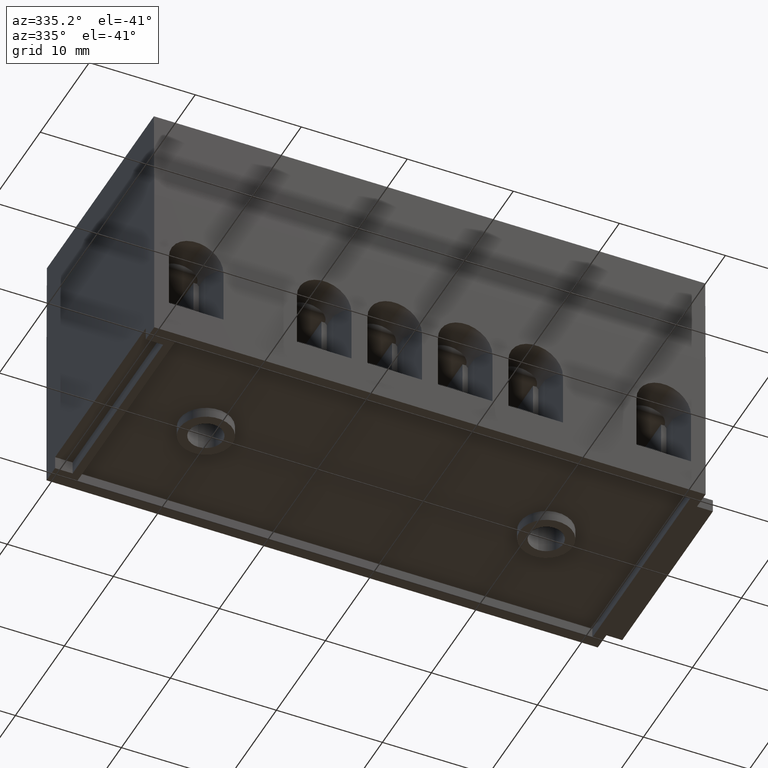
[diagram: clean part render]
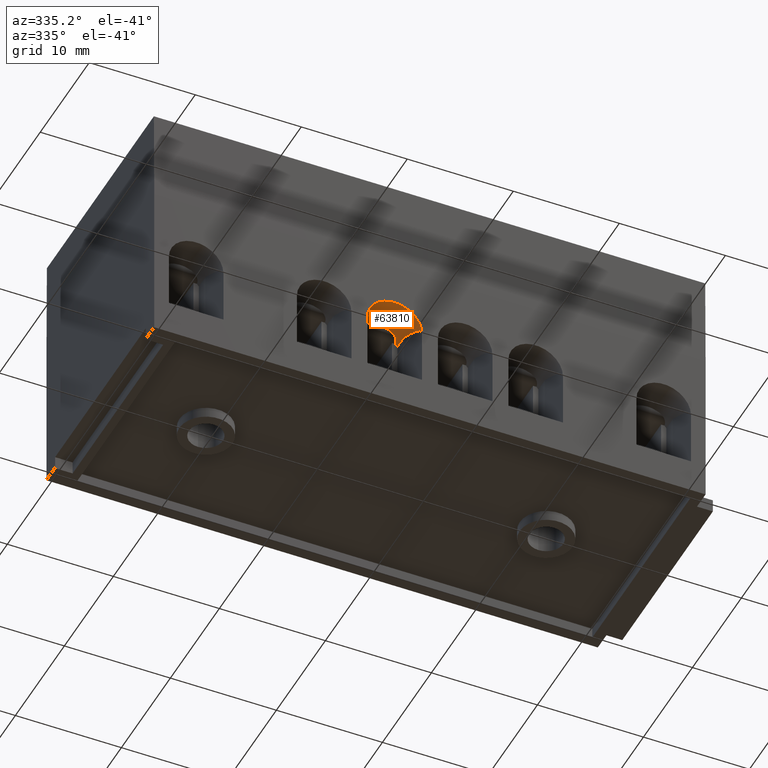
[diagram: same view with one face highlighted and labeled with its STEP entity id]
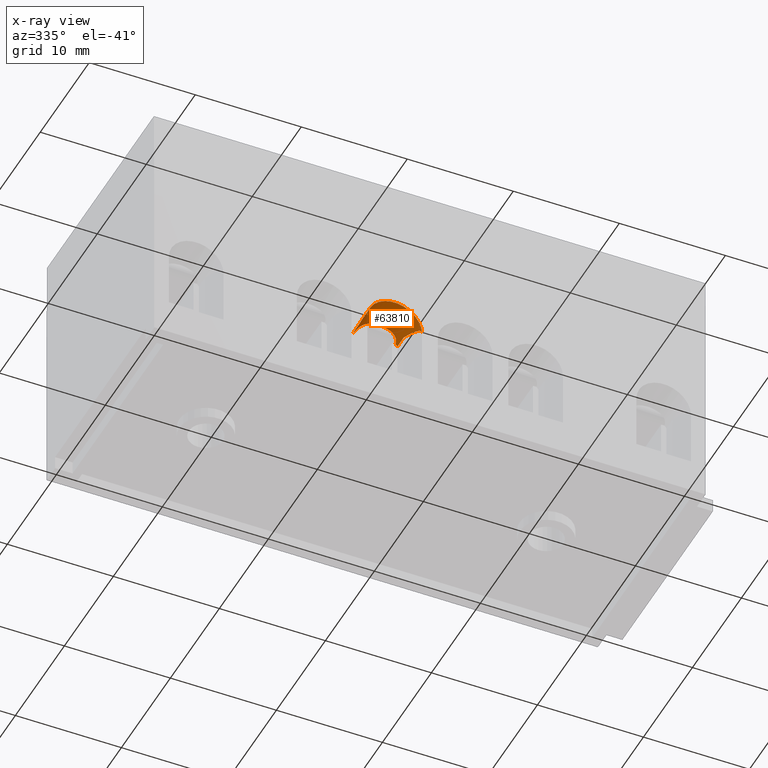
[diagram: x-ray of the same camera — body ghosted, the highlighted face saturated]
A machine part, auxiliary view. The second image highlights one B-rep face of the part: STEP entity #63810.
The next image is the same camera in x-ray: the body ghosted, the highlighted face saturated — about 0% of this face is hidden behind the body in this view.
In plain terms, the highlighted cylindrical surface (edge-blend (fillet) strip) has radius 2.575 mm, axis along (0, 1, 0).
Its self-contained STEP definition (entity closure, byte-faithful):
#17730=CARTESIAN_POINT('',(-109.132337741337,-187.476755845654,
-2.5371653489259E-7));
#17740=VERTEX_POINT('',#17730);
#17770=CARTESIAN_POINT('',(-106.557337741337,-187.476755845654,
-2.53716533116233E-7));
#17780=DIRECTION('',(0.,0.,1.));
#17790=DIRECTION('',(-1.,0.,0.));
#17800=AXIS2_PLACEMENT_3D('',#17770,#17780,#17790);
#17810=CIRCLE('',#17800,2.57499999999999);
#17820=CARTESIAN_POINT('',(-103.982337741337,-187.476755845654,
-2.5371653489259E-7));
#17830=VERTEX_POINT('',#17820);
#17840=EDGE_CURVE('',#17830,#17740,#17810,.T.);
#61100=CARTESIAN_POINT('',(-106.557337741337,-187.476755845654,
4.52970994047064E-14));
#61110=DIRECTION('',(0.,0.,1.));
#61120=DIRECTION('',(-1.,0.,0.));
#61130=AXIS2_PLACEMENT_3D('',#61100,#61110,#61120);
#61140=CYLINDRICAL_SURFACE('',#61130,2.57499999999999);
#61150=CARTESIAN_POINT('',(-106.557337741337,-184.954945071401,
4.05000000000006));
#61160=DIRECTION('',(-1.,0.,-3.44892722976232E-15));
#61170=DIRECTION('',(-3.44892722976232E-15,0.,1.));
#61180=AXIS2_PLACEMENT_3D('',#61150,#61160,#61170);
#61190=CYLINDRICAL_SURFACE('',#61180,0.800000000000001);
#61200=CARTESIAN_POINT('',(-106.036669498728,-184.954945071401,
3.25000000000006));
#61210=CARTESIAN_POINT('',(-106.058018690955,-184.950537188576,
3.25000000000006));
#61220=CARTESIAN_POINT('',(-106.079409429883,-184.946403451234,
3.25003629271377));
#61230=CARTESIAN_POINT('',(-106.100829564351,-184.942544866997,
3.25009610894143));
#61240=CARTESIAN_POINT('',(-106.122245177745,-184.938687097177,
3.25015591254389));
#61250=CARTESIAN_POINT('',(-106.14372889894,-184.935097342086,
3.25023935224579));
#61260=CARTESIAN_POINT('',(-106.165274349902,-184.93177818424,
3.2503355107677));
#61270=CARTESIAN_POINT('',(-106.208364713264,-184.925139951514,
3.25052782540787));
#61280=CARTESIAN_POINT('',(-106.25169757476,-184.919585397265,
3.25076939829644));
#61290=CARTESIAN_POINT('',(-106.295192418903,-184.915134322102,
3.25099117386594));
#61300=CARTESIAN_POINT('',(-106.338687174338,-184.910683256016,
3.25121294898313));
#61310=CARTESIAN_POINT('',(-106.382343263984,-184.907335774938,
3.25141477783128));
#61320=CARTESIAN_POINT('',(-106.426076365165,-184.905103565285,
3.25155411938691));
#61330=CARTESIAN_POINT('',(-106.469809430067,-184.902871357484,
3.25169346082695));
#61340=CARTESIAN_POINT('',(-106.513618759901,-184.901754476813,
3.25177023317267));
#61350=CARTESIAN_POINT('',(-106.557418290329,-184.901755846914,
3.25177014187745));
#61360=CARTESIAN_POINT('',(-106.601217838844,-184.901757217014,
3.2517700505822));
#61370=CARTESIAN_POINT('',(-106.645006799705,-184.902876831415,
3.25169310474296));
#61380=CARTESIAN_POINT('',(-106.688699619602,-184.905108697047,
3.25155379906274));
#61390=CARTESIAN_POINT('',(-106.732392519042,-184.907340566742,
3.25141449312892));
#61400=CARTESIAN_POINT('',(-106.775988513547,-184.910684615035,
3.25121292581883));
#61410=CARTESIAN_POINT('',(-106.819405007173,-184.915126335327,
3.25099157184834));
#61420=CARTESIAN_POINT('',(-106.862834375558,-184.91956937277,
3.25077015223739));
#61430=CARTESIAN_POINT('',(-106.906028737297,-184.92510231107,
3.2505293441787));
#61440=CARTESIAN_POINT('',(-106.949066956924,-184.931726725652,
3.2503370032191));
#61450=CARTESIAN_POINT('',(-106.992135771808,-184.938355849436,
3.25014452552706));
#61460=CARTESIAN_POINT('',(-107.035149795692,-184.946096724629,
3.24999999999998));
#61470=CARTESIAN_POINT('',(-107.078005983946,-184.954945071401,
3.24999999999998));
#61480=B_SPLINE_CURVE_WITH_KNOTS('',3,(#61200,#61210,#61220,#61230,
#61240,#61250,#61260,#61270,#61280,#61290,#61300,#61310,#61320,#61330,
#61340,#61350,#61360,#61370,#61380,#61390,#61400,#61410,#61420,#61430,
#61440,#61450,#61460,#61470),.UNSPECIFIED.,.F.,.F.,(4,3,3,3,3,3,3,3,3,4)
,(0.,0.065349217398835,0.130689398047645,0.261685022357807,
0.392968221668109,0.52436729316619,0.655705900215693,0.786810000849604,
0.917545972419548,1.04857348763323),.UNSPECIFIED.);
#61490=SURFACE_CURVE('',#61480,(#61140,#61190),.CURVE_3D.);
#61500=CARTESIAN_POINT('',(-106.036669498728,-184.954945071401,
3.25000000000006));
#61510=VERTEX_POINT('',#61500);
#61520=CARTESIAN_POINT('',(-107.078005983946,-184.954945071401,
3.25000000000006));
#61530=VERTEX_POINT('',#61520);
#61540=EDGE_CURVE('',#61510,#61530,#61490,.T.);
#61550=ORIENTED_EDGE('',*,*,#61540,.T.);
#61560=CARTESIAN_POINT('',(-104.644067167693,-185.753381042534,
4.00000000000008));
#61570=CARTESIAN_POINT('',(-104.644602369958,-185.752786867232,
3.99051178131061));
#61580=CARTESIAN_POINT('',(-104.645286983965,-185.752027327444,
3.98108327044747));
#61590=CARTESIAN_POINT('',(-104.646124089443,-185.751100208855,
3.97166101158814));
#61600=CARTESIAN_POINT('',(-104.64696125764,-185.750173020805,
3.9622380467944));
#61610=CARTESIAN_POINT('',(-104.647951149807,-185.749077999277,
3.95282715965155));
#61620=CARTESIAN_POINT('',(-104.649093922556,-185.747816711941,
3.94344221461137));
#61630=CARTESIAN_POINT('',(-104.651272821792,-185.745411843592,
3.9255481498451));
#61640=CARTESIAN_POINT('',(-104.654008159184,-185.742401449734,
3.90774945677552));
#61650=CARTESIAN_POINT('',(-104.657291742541,-185.738811599581,
3.89014611046642));
#61660=CARTESIAN_POINT('',(-104.6605753034,-185.735221774023,
3.87254288476308));
#61670=CARTESIAN_POINT('',(-104.664406693913,-185.731053082019,
3.85513804796016));
#61680=CARTESIAN_POINT('',(-104.668764072147,-185.726351750582,
3.83802892811873));
#61690=CARTESIAN_POINT('',(-104.673121478654,-185.721650388641,
3.82091969726703));
#61700=CARTESIAN_POINT('',(-104.67800418149,-185.716417312921,
3.80410901677593));
#61710=CARTESIAN_POINT('',(-104.683377383895,-185.710715761529,
3.78768213186418));
#61720=CARTESIAN_POINT('',(-104.688754036329,-185.705010549281,
3.77124469956726));
#61730=CARTESIAN_POINT('',(-104.694603644897,-185.698855383188,
3.75523691703939));
#61740=CARTESIAN_POINT('',(-104.700931202845,-185.692272793382,
3.73960053093251));
#61750=CARTESIAN_POINT('',(-104.707264294659,-185.685684446669,
3.72395046977479));
#61760=CARTESIAN_POINT('',(-104.714094099796,-185.678649498501,
3.70863492809586));
#61770=CARTESIAN_POINT('',(-104.721399753758,-185.671220826395,
3.69370090821313));
#61780=CARTESIAN_POINT('',(-104.728705333672,-185.663792229585,
3.67876703969741));
#61790=CARTESIAN_POINT('',(-104.736486282078,-185.655970554998,
3.6642161049245));
#61800=CARTESIAN_POINT('',(-104.744711630787,-185.647818563139,
3.65009210503508));
#61810=CARTESIAN_POINT('',(-104.752936960033,-185.639666590568,
3.63596813856539));
#61820=CARTESIAN_POINT('',(-104.76160604639,-185.631185096117,
3.62227237750744));
#61830=CARTESIAN_POINT('',(-104.770678193741,-185.622443935263,
3.60904051574344));
#61840=CARTESIAN_POINT('',(-104.779750380812,-185.613702736139,
3.59580859604892));
#61850=CARTESIAN_POINT('',(-104.789224907632,-185.60470270232,
3.58304160236946));
#61860=CARTESIAN_POINT('',(-104.799052858648,-185.595517085869,
3.57076363422199));
#61870=CARTESIAN_POINT('',(-104.810172501137,-185.585124200231,
3.55687196788663));
#61880=CARTESIAN_POINT('',(-104.821730171841,-185.574507096356,
3.54362212386986));
#61890=CARTESIAN_POINT('',(-104.833684948232,-185.563735707542,
3.53098751330392));
#61900=CARTESIAN_POINT('',(-104.845653164675,-185.552952209088,
3.5183386983872));
#61910=CARTESIAN_POINT('',(-104.858077340743,-185.541961785237,
3.50624580803968));
#61920=CARTESIAN_POINT('',(-104.870923463441,-185.530828847182,
3.49470019194261));
#61930=CARTESIAN_POINT('',(-104.883769530082,-185.519695957709,
3.48315462622804));
#61940=CARTESIAN_POINT('',(-104.897037235532,-185.508420915314,
3.47215675721724));
#61950=CARTESIAN_POINT('',(-104.91068590058,-185.497068315933,
3.4616953274554));
#61960=CARTESIAN_POINT('',(-104.924334543082,-185.485715735305,
3.45123391497433));
#61970=CARTESIAN_POINT('',(-104.938363749672,-185.474286003294,
3.44130928609045));
#61980=CARTESIAN_POINT('',(-104.952726677541,-185.462842159831,
3.43190571304708));
#61990=CARTESIAN_POINT('',(-104.967089617687,-185.451398306587,
3.42250213196611));
#62000=CARTESIAN_POINT('',(-104.981785860263,-185.4399407284,
3.41361985056877));
#62010=CARTESIAN_POINT('',(-104.996763406225,-185.42852911392,
3.40523790847235));
#62020=CARTESIAN_POINT('',(-105.01174099892,-185.417117463833,
3.39685594022201));
#62030=CARTESIAN_POINT('',(-105.026999491735,-185.405752111569,
3.38897446164303));
#62040=CARTESIAN_POINT('',(-105.042483033469,-185.394487799974,
3.38156736333219));
#62050=CARTESIAN_POINT('',(-105.057971059381,-185.38322022613,
3.37415811985699));
#62060=CARTESIAN_POINT('',(-105.073650455699,-185.372076644281,
3.36723616140652));
#62070=CARTESIAN_POINT('',(-105.089614674208,-185.361002079683,
3.3607121747585));
#62080=CARTESIAN_POINT('',(-105.105572828907,-185.349931721621,
3.35419066616562));
#62090=CARTESIAN_POINT('',(-105.121784098781,-185.338953478744,
3.34808245388106));
#62100=CARTESIAN_POINT('',(-105.138225164414,-185.328094752307,
3.34235650524292));
#62110=CARTESIAN_POINT('',(-105.154666228523,-185.317236026877,
3.33663055713587));
#62120=CARTESIAN_POINT('',(-105.17133707599,-185.306496829191,
3.33128689917512));
#62130=CARTESIAN_POINT('',(-105.188213014808,-185.295902232205,
3.3262954922275));
#62140=CARTESIAN_POINT('',(-105.205088952355,-185.285307636017,
3.32130408565581));
#62150=CARTESIAN_POINT('',(-105.222169943374,-185.274857666579,
3.31666495147578));
#62160=CARTESIAN_POINT('',(-105.239429924252,-185.264575024444,
3.31234880042332));
#62170=CARTESIAN_POINT('',(-105.256689907532,-185.254292380878,
3.30803264877019));
#62180=CARTESIAN_POINT('',(-105.274128827739,-185.244177096592,
3.30403949434183));
#62190=CARTESIAN_POINT('',(-105.291719379442,-185.234249399275,
3.30034068241295));
#62200=CARTESIAN_POINT('',(-105.309309939674,-185.224321697145,
3.29664186869068));
#62210=CARTESIAN_POINT('',(-105.327052069219,-185.214581615021,
3.29323740442516));
#62220=CARTESIAN_POINT('',(-105.344917450563,-185.205046788904,
3.29009926246781));
#62230=CARTESIAN_POINT('',(-105.380623576799,-185.185990285244,
3.28382730606678));
#62240=CARTESIAN_POINT('',(-105.416915905343,-185.167702446482,
3.27859906764446));
#62250=CARTESIAN_POINT('',(-105.453778278833,-185.150217319706,
3.27419799623598));
#62260=CARTESIAN_POINT('',(-105.490635140132,-185.132734807557,
3.2697975829388));
#62270=CARTESIAN_POINT('',(-105.528038622,-185.116067039233,
3.26622849855555));
#62280=CARTESIAN_POINT('',(-105.565903888591,-185.100270222799,
3.263310353199));
#62290=CARTESIAN_POINT('',(-105.60376918892,-185.08447339229,
3.26039220524245));
#62300=CARTESIAN_POINT('',(-105.642096512924,-185.069547385046,
3.25812515869556));
#62310=CARTESIAN_POINT('',(-105.68079764845,-185.055536635098,
3.25634936066052));
#62320=CARTESIAN_POINT('',(-105.719498773071,-185.041525889098,
3.25457356312589));
#62330=CARTESIAN_POINT('',(-105.758573565915,-185.028430451871,
3.25328906121679));
#62340=CARTESIAN_POINT('',(-105.797929546293,-185.01628349399,
3.2523549674717));
#62350=CARTESIAN_POINT('',(-105.837285548172,-185.004136529473,
3.2514208732163));
#62360=CARTESIAN_POINT('',(-105.876922294756,-184.992938173077,
3.25083714582665));
#62370=CARTESIAN_POINT('',(-105.916744316954,-184.982709922933,
3.25048194953496));
#62380=CARTESIAN_POINT('',(-105.956566467763,-184.972481639757,
3.25012675209613));
#62390=CARTESIAN_POINT('',(-105.996573182984,-184.96322359827,
3.25000000000006));
#62400=CARTESIAN_POINT('',(-106.036669498728,-184.954945071401,
3.25000000000006));
#62410=B_SPLINE_CURVE_WITH_KNOTS('',3,(#61560,#61570,#61580,#61590,
#61600,#61610,#61620,#61630,#61640,#61650,#61660,#61670,#61680,#61690,
#61700,#61710,#61720,#61730,#61740,#61750,#61760,#61770,#61780,#61790,
#61800,#61810,#61820,#61830,#61840,#61850,#61860,#61870,#61880,#61890,
#61900,#61910,#61920,#61930,#61940,#61950,#61960,#61970,#61980,#61990,
#62000,#62010,#62020,#62030,#62040,#62050,#62060,#62070,#62080,#62090,
#62100,#62110,#62120,#62130,#62140,#62150,#62160,#62170,#62180,#62190,
#62200,#62210,#62220,#62230,#62240,#62250,#62260,#62270,#62280,#62290,
#62300,#62310,#62320,#62330,#62340,#62350,#62360,#62370,#62380,#62390,
#62400),.UNSPECIFIED.,.F.,.F.,(4,3,3,3,3,3,3,3,3,3,3,3,3,3,3,3,3,3,3,3,3
,3,3,3,3,3,3,3,4),(0.,0.0285076411258702,0.0570743323324345,
0.111762541367967,0.166580781059386,0.22130467423031,0.275727516639789,
0.330230186155948,0.384950884487374,0.439766605332542,0.494507395720559,
0.556097791140406,0.617643851626255,0.679381562157277,0.741248403812694,
0.803126167089598,0.864853850070819,0.926322594423127,0.987832635221418,
1.04942563979108,1.11106654856047,1.1726984218839,1.23424613396581,
1.35719032130534,1.4804377985888,1.60394495947135,1.72755768346632,
1.85105187107282,1.97416218477538),.UNSPECIFIED.);
#62420=SURFACE_CURVE('',#62410,(#61140,#61190),.CURVE_3D.);
#62430=CARTESIAN_POINT('',(-104.644067167693,-185.753381042534,
4.00000000000009));
#62440=VERTEX_POINT('',#62430);
#62450=EDGE_CURVE('',#62440,#61510,#62420,.T.);
#62460=ORIENTED_EDGE('',*,*,#62450,.T.);
#62470=CARTESIAN_POINT('',(-106.557337741337,-187.476755845654,
4.00000000000008));
#62480=DIRECTION('',(0.,0.,1.));
#62490=DIRECTION('',(-1.,0.,0.));
#62500=AXIS2_PLACEMENT_3D('',#62470,#62480,#62490);
#62510=CIRCLE('',#62500,2.57499999999999);
#62520=CARTESIAN_POINT('',(-104.457337741337,-185.986579681571,
4.00000000000008));
#62530=VERTEX_POINT('',#62520);
#62540=EDGE_CURVE('',#62530,#62440,#62510,.T.);
#62550=ORIENTED_EDGE('',*,*,#62540,.T.);
#62560=CARTESIAN_POINT('',(-104.457337741337,-185.986579681571,
4.44089209850063E-14));
#62570=DIRECTION('',(0.,0.,1.));
#62580=VECTOR('',#62570,1.);
#62590=LINE('',#62560,#62580);
#62600=CARTESIAN_POINT('',(-104.457337741337,-185.986579681571,
2.69385886431851));
#62610=VERTEX_POINT('',#62600);
#62620=EDGE_CURVE('',#62610,#62530,#62590,.T.);
#62630=ORIENTED_EDGE('',*,*,#62620,.T.);
#62640=CARTESIAN_POINT('',(-106.557337741337,-187.476755845654,
14.6035506855157));
#62650=DIRECTION('',(0.984807753012208,0.,0.17364817766693));
#62660=DIRECTION('',(0.17364817766693,0.,-0.984807753012208));
#62670=AXIS2_PLACEMENT_3D('',#62640,#62650,#62660);
#62680=ELLIPSE('',#62670,14.8288339940948,2.57499999999999);
#62690=EDGE_CURVE('',#17830,#62610,#62680,.T.);
#62700=ORIENTED_EDGE('',*,*,#62690,.T.);
#62710=ORIENTED_EDGE('',*,*,#17840,.F.);
#62720=CARTESIAN_POINT('',(-106.557337741337,-187.476755845654,
14.6035506855156));
#62730=DIRECTION('',(0.984807753012208,0.,-0.17364817766693));
#62740=DIRECTION('',(-0.17364817766693,0.,-0.984807753012208));
#62750=AXIS2_PLACEMENT_3D('',#62720,#62730,#62740);
#62760=ELLIPSE('',#62750,14.8288339940948,2.57499999999999);
#62770=CARTESIAN_POINT('',(-108.657337741337,-185.986579681571,
2.69385886431847));
#62780=VERTEX_POINT('',#62770);
#62790=EDGE_CURVE('',#17740,#62780,#62760,.T.);
#62800=ORIENTED_EDGE('',*,*,#62790,.F.);
#62810=CARTESIAN_POINT('',(-108.657337741337,-185.986579681571,
4.44089209850063E-14));
#62820=DIRECTION('',(0.,0.,1.));
#62830=VECTOR('',#62820,1.);
#62840=LINE('',#62810,#62830);
#62850=CARTESIAN_POINT('',(-108.657337741337,-185.986579681571,
4.00000000000008));
#62860=VERTEX_POINT('',#62850);
#62870=EDGE_CURVE('',#62780,#62860,#62840,.T.);
#62880=ORIENTED_EDGE('',*,*,#62870,.F.);
#62890=CARTESIAN_POINT('',(-108.470608314981,-185.753381042534,
4.00000000000007));
#62900=VERTEX_POINT('',#62890);
#62910=EDGE_CURVE('',#62900,#62860,#62510,.T.);
#62920=ORIENTED_EDGE('',*,*,#62910,.T.);
#62930=CARTESIAN_POINT('',(-107.078005983946,-184.954945071401,
3.24999999999996));
#62940=CARTESIAN_POINT('',(-107.118351429804,-184.963275035174,
3.24999999999996));
#62950=CARTESIAN_POINT('',(-107.158534418241,-184.972581714895,
3.25012844892087));
#62960=CARTESIAN_POINT('',(-107.198473127263,-184.982849188035,
3.2504867979354));
#62970=CARTESIAN_POINT('',(-107.23841184337,-184.993116662997,
3.25084514701348));
#62980=CARTESIAN_POINT('',(-107.278105938271,-185.004344836163,
3.25143346394946));
#62990=CARTESIAN_POINT('',(-107.317476305286,-185.016509036166,
3.25237234360632));
#63000=CARTESIAN_POINT('',(-107.356846690804,-185.028673241884,
3.25331122370439));
#63010=CARTESIAN_POINT('',(-107.395893242268,-185.041773435437,
3.25460067498332));
#63020=CARTESIAN_POINT('',(-107.434540110861,-185.055776497765,
3.25637979898526));
#63030=CARTESIAN_POINT('',(-107.473186954712,-185.069779551129,
3.25815892184823));
#63040=CARTESIAN_POINT('',(-107.511434274428,-185.084685550961,
3.26042764026203));
#63050=CARTESIAN_POINT('',(-107.54920849022,-185.100452536413,
3.26334405384183));
#63060=CARTESIAN_POINT('',(-107.586986290079,-185.116221017857,
3.26626074413474));
#63070=CARTESIAN_POINT('',(-107.624275638314,-185.132843510946,
3.26982324170649));
#63080=CARTESIAN_POINT('',(-107.661047580848,-185.15028865479,
3.2742159550309));
#63090=CARTESIAN_POINT('',(-107.697843434324,-185.167745142332,
3.27861152471548));
#63100=CARTESIAN_POINT('',(-107.734232553602,-185.186081109575,
3.28385309207538));
#63110=CARTESIAN_POINT('',(-107.770035041451,-185.205194651604,
3.29014794359086));
#63120=CARTESIAN_POINT('',(-107.805837461519,-185.224308157446,
3.2964427831887));
#63130=CARTESIAN_POINT('',(-107.841052353023,-185.244198797977,
3.30379067210343));
#63140=CARTESIAN_POINT('',(-107.875512242521,-185.264733923417,
3.31241551860798));
#63150=CARTESIAN_POINT('',(-107.909972578595,-185.285269314978,
3.32104047688449));
#63160=CARTESIAN_POINT('',(-107.943675637418,-185.306447755856,
3.33094115863704));
#63170=CARTESIAN_POINT('',(-107.976473621041,-185.328110143139,
3.34236462126699));
#63180=CARTESIAN_POINT('',(-107.992881149493,-185.338946975054,
3.3480793258739));
#63190=CARTESIAN_POINT('',(-108.00911613162,-185.349940285202,
3.35419465472311));
#63200=CARTESIAN_POINT('',(-108.025131076405,-185.361050827084,
3.36074089396345));
#63210=CARTESIAN_POINT('',(-108.041145984549,-185.372161343545,
3.3672871182267));
#63220=CARTESIAN_POINT('',(-108.056940618354,-185.383388922628,
3.37426420437379));
#63230=CARTESIAN_POINT('',(-108.072469849483,-185.394689637565,
3.38170012978542));
#63240=CARTESIAN_POINT('',(-108.087999065389,-185.405990341424,
3.3891360479075));
#63250=CARTESIAN_POINT('',(-108.103262633238,-185.417363983483,
3.39703071579808));
#63260=CARTESIAN_POINT('',(-108.118218638207,-185.428762724135,
3.40540956262363));
#63270=CARTESIAN_POINT('',(-108.13317464836,-185.440161468739,
3.41378841235348));
#63280=CARTESIAN_POINT('',(-108.147822859242,-185.451585098541,
3.42265130390265));
#63290=CARTESIAN_POINT('',(-108.16212525505,-185.46298276116,
3.43202127400388));
#63300=CARTESIAN_POINT('',(-108.176427674999,-185.474380443018,
3.44139125992079));
#63310=CARTESIAN_POINT('',(-108.190384083469,-185.485751955602,
3.45126814274597));
#63320=CARTESIAN_POINT('',(-108.203960794675,-185.49704437167,
3.46167326369517));
#63330=CARTESIAN_POINT('',(-108.210749150254,-185.502690579685,
3.46687582415194));
#63340=CARTESIAN_POINT('',(-108.217442634941,-185.508316973923,
3.47221041208168));
#63350=CARTESIAN_POINT('',(-108.224037439572,-185.513916800825,
3.47767963018554));
#63360=CARTESIAN_POINT('',(-108.230628949567,-185.519513830163,
3.48314611597518));
#63370=CARTESIAN_POINT('',(-108.237137017532,-185.525097163652,
3.48875956276223));
#63380=CARTESIAN_POINT('',(-108.243559652858,-185.530662151838,
3.49452736944642));
#63390=CARTESIAN_POINT('',(-108.25640371775,-185.541791083463,
3.5060618999906));
#63400=CARTESIAN_POINT('',(-108.268894429225,-185.552837341783,
3.51820538148797));
#63410=CARTESIAN_POINT('',(-108.280958898362,-185.563707203528,
3.53095408052155));
#63420=CARTESIAN_POINT('',(-108.293023277559,-185.57457698424,
3.54370268451475));
#63430=CARTESIAN_POINT('',(-108.304660353134,-185.585269263659,
3.55705554179655));
#63440=CARTESIAN_POINT('',(-108.315806326924,-185.595688799104,
3.57099324069567));
#63450=CARTESIAN_POINT('',(-108.325664644734,-185.60490460149,
3.5833207652238));
#63460=CARTESIAN_POINT('',(-108.335138254337,-185.613906310557,
3.59610473794019));
#63470=CARTESIAN_POINT('',(-108.344190684539,-185.622630294507,
3.60932274523954));
#63480=CARTESIAN_POINT('',(-108.353243159025,-185.631354321134,
3.62254081719985));
#63490=CARTESIAN_POINT('',(-108.361873965038,-185.639800021972,
3.63619203160801));
#63500=CARTESIAN_POINT('',(-108.370054923573,-185.647908827112,
3.65024853562174));
#63510=CARTESIAN_POINT('',(-108.378237007809,-185.656018748024,
3.66430697381317));
#63520=CARTESIAN_POINT('',(-108.385964733208,-185.663787099035,
3.6787616122691));
#63530=CARTESIAN_POINT('',(-108.393229876658,-185.671174203227,
3.69360719602793));
#63540=CARTESIAN_POINT('',(-108.400502518281,-185.678568931466,
3.70846810154431));
#63550=CARTESIAN_POINT('',(-108.40734999548,-185.685620931664,
3.72380245053328));
#63560=CARTESIAN_POINT('',(-108.413724965035,-185.692252700324,
3.73955280588747));
#63570=CARTESIAN_POINT('',(-108.420099849301,-185.69888438026,
3.755302950524));
#63580=CARTESIAN_POINT('',(-108.42600132822,-185.705094706393,
3.77146702697183));
#63590=CARTESIAN_POINT('',(-108.431392329742,-185.710815756161,
3.78797040640184));
#63600=CARTESIAN_POINT('',(-108.436783320928,-185.71653679496,
3.8044737541929));
#63610=CARTESIAN_POINT('',(-108.441663110164,-185.72176759803,
3.82131394425804));
#63620=CARTESIAN_POINT('',(-108.446007255694,-185.726455167045,
3.83840564204433));
#63630=CARTESIAN_POINT('',(-108.4503514457,-185.731142784052,
3.85549751481653));
#63640=CARTESIAN_POINT('',(-108.454159523907,-185.735286505435,
3.87283825887985));
#63650=CARTESIAN_POINT('',(-108.457419979197,-185.738851219568,
3.89034051589145));
#63660=CARTESIAN_POINT('',(-108.459050268235,-185.740633643757,
3.89909197396214));
#63670=CARTESIAN_POINT('',(-108.460543543877,-185.742271272001,
3.90788202655097));
#63680=CARTESIAN_POINT('',(-108.46190012664,-185.743762158277,
3.91670482584741));
#63690=CARTESIAN_POINT('',(-108.463257410551,-185.745253815114,
3.9255321851919));
#63700=CARTESIAN_POINT('',(-108.464482631493,-185.746603828454,
3.93442382415142));
#63710=CARTESIAN_POINT('',(-108.465572485066,-185.747806695787,
3.94336771326027));
#63720=CARTESIAN_POINT('',(-108.467850035965,-185.75032042024,
3.96205844674732));
#63730=CARTESIAN_POINT('',(-108.469535272162,-185.752189762932,
3.98097679026835));
#63740=CARTESIAN_POINT('',(-108.470608314981,-185.753381042534,
4.00000000000007));
#63750=B_SPLINE_CURVE_WITH_KNOTS('',3,(#62930,#62940,#62950,#62960,
#62970,#62980,#62990,#63000,#63010,#63020,#63030,#63040,#63050,#63060,
#63070,#63080,#63090,#63100,#63110,#63120,#63130,#63140,#63150,#63160,
#63170,#63180,#63190,#63200,#63210,#63220,#63230,#63240,#63250,#63260,
#63270,#63280,#63290,#63300,#63310,#63320,#63330,#63340,#63350,#63360,
#63370,#63380,#63390,#63400,#63410,#63420,#63430,#63440,#63450,#63460,
#63470,#63480,#63490,#63500,#63510,#63520,#63530,#63540,#63550,#63560,
#63570,#63580,#63590,#63600,#63610,#63620,#63630,#63640,#63650,#63660,
#63670,#63680,#63690,#63700,#63710,#63720,#63730,#63740),.UNSPECIFIED.,
.F.,.F.,(4,3,3,3,3,3,3,3,3,3,3,3,3,3,3,3,3,3,3,3,3,3,3,3,3,3,3,4),(0.,
0.123669903350533,0.247369099182647,0.370922257860507,0.494198993615354,
0.617139268545337,0.740233804490467,0.863413156645136,0.986358625981353,
1.047929799363,1.10967618263333,1.17145793499768,1.233167266222,
1.29473715605557,1.3254623447443,1.35621066054163,1.41801024990874,
1.47999530087765,1.53478517109422,1.58941356343531,1.64381772213815,
1.6983793965036,1.75317685011243,1.80798363627601,1.86260132309674,
1.88979303166833,1.91701213417393,1.97416217941494),.UNSPECIFIED.);
#63760=SURFACE_CURVE('',#63750,(#61140,#61190),.CURVE_3D.);
#63770=EDGE_CURVE('',#61530,#62900,#63760,.T.);
#63780=ORIENTED_EDGE('',*,*,#63770,.T.);
#63790=EDGE_LOOP('',(#63780,#62920,#62880,#62800,#62710,#62700,#62630,
#62550,#62460,#61550));
#63800=FACE_OUTER_BOUND('',#63790,.T.);
#63810=ADVANCED_FACE('',(#63800),#61140,.F.);